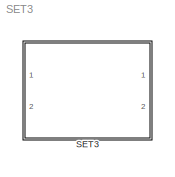
MODEL SET3
KIND model
CONFIG AbsTol = auto
CONFIG FixedStep = auto
CONFIG MaxStep = auto
CONFIG MinStep = auto
CONFIG RelTol = 1e-3
CONFIG Solver = ode45
CONFIG SolverMode = Auto
CONFIG StartTime = 0.0
CONFIG StopTime = 10.0
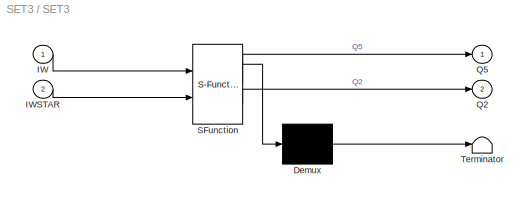
BLOCK [SubSystem] SET3
  MaskDescription = Stateflow diagram
  MaskDisplay = plot(sf('Private','sfblk','xIcon'),sf('Private','sfblk','yIcon'));text(0.5,0,sf('Private', 'sfblk', 'tIcon'),'HorizontalAl','Center','VerticalAl','Bottom');
  MaskIconFrame = off
  MaskIconOpaque = off
  MaskIconRotate = none
  MaskIconUnits = autoscale
  MaskSelfModifiable = on
  MaskType = Stateflow
  Ports = [2, 2]
  TreatAsAtomicUnit = off
BLOCK [Demux] SET3/ Demux 
  Outputs = 1
  Ports = [1, 1]
BLOCK [S-Function] SET3/ SFunction 
  FunctionName = sf_sfun
  PortCounts = [2 3]
  Ports = [2, 3]
  Tag = Stateflow S-Function SET3 1
BLOCK [Terminator] SET3/ Terminator 
BLOCK [Inport] SET3/IW
  PortDimensions = 1
BLOCK [Inport] SET3/IWSTAR
  Port = 2
  PortDimensions = 1
BLOCK [Outport] SET3/Q2
  Port = 2
BLOCK [Outport] SET3/Q5
LINE SET3/ Demux :1 -> SET3/ Terminator :1
LINE SET3/ SFunction :1 -> SET3/ Demux :1
LINE SET3/ SFunction :2 -> SET3/Q5:1
LINE SET3/ SFunction :3 -> SET3/Q2:1
LINE SET3/IW:1 -> SET3/ SFunction :1
LINE SET3/IWSTAR:1 -> SET3/ SFunction :2
CHART SET3 states=3 transitions=4
  STATE_LABEL 'C/'
  STATE_LABEL 'C1/\\nduring:Q5=1;Q2=0;'
  STATE_LABEL 'C2/\\nduring:Q2=1;Q5=0;'
